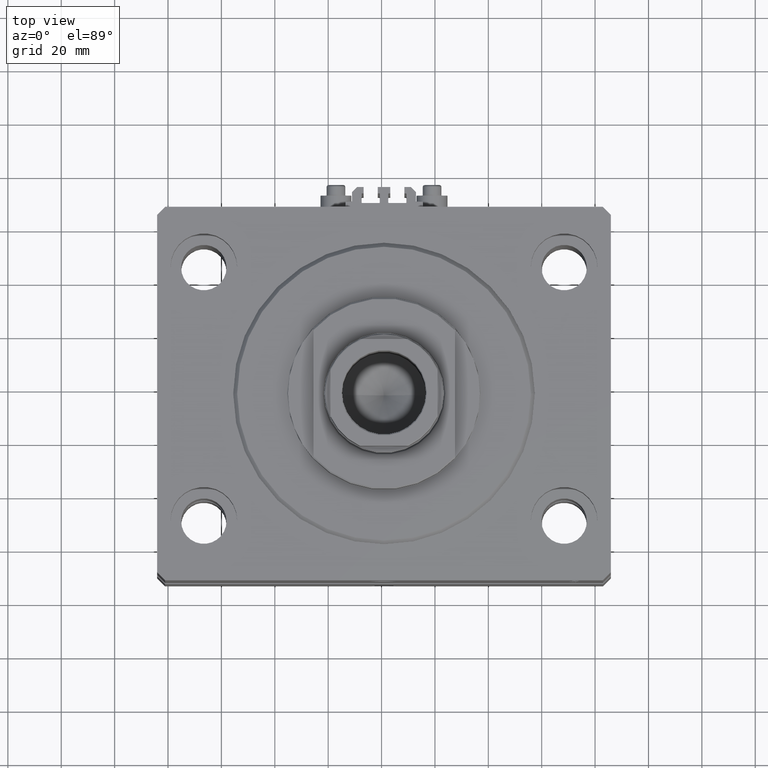
[diagram: clean part render]
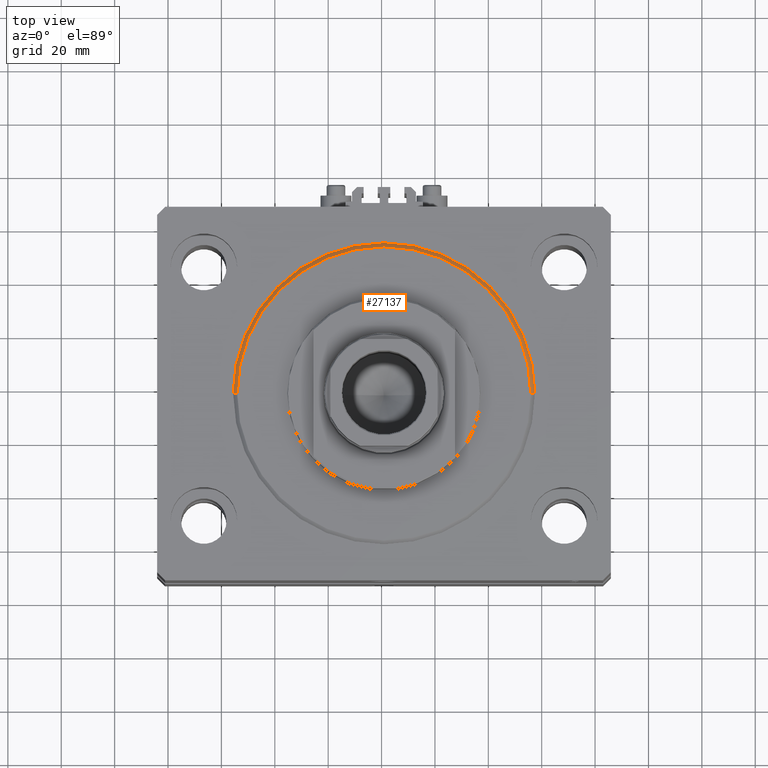
[diagram: same view with one face highlighted and labeled with its STEP entity id]
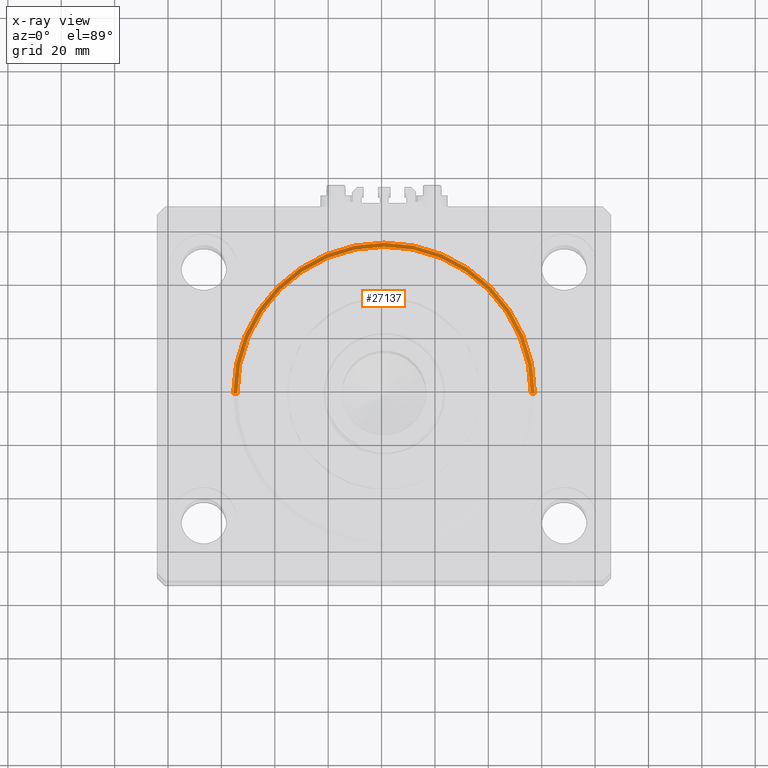
[diagram: x-ray of the same camera — body ghosted, the highlighted face saturated]
A machine part, top view. The second image highlights one B-rep face of the part: STEP entity #27137.
The next image is the same camera in x-ray: the body ghosted, the highlighted face saturated — about 0% of this face is hidden behind the body in this view.
In plain terms, the highlighted conical surface has half-angle 45 deg.
Its self-contained STEP definition (entity closure, byte-faithful):
#521 = VERTEX_POINT ( 'NONE', #42163 ) ;
#978 = DIRECTION ( 'NONE',  ( 1.000000000000000000, 0.000000000000000000, 0.000000000000000000 ) ) ;
#1007 = LINE ( 'NONE', #20058, #36285 ) ;
#1462 = CARTESIAN_POINT ( 'NONE',  ( 0.000000000000000000, 0.000000000000000000, 1.499999999999987566 ) ) ;
#1571 = VERTEX_POINT ( 'NONE', #39433 ) ;
#5839 = ORIENTED_EDGE ( 'NONE', *, *, #16576, .F. ) ;
#5986 = EDGE_LOOP ( 'NONE', ( #37664, #45448, #13624, #5839 ) ) ;
#6374 = DIRECTION ( 'NONE',  ( -0.000000000000000000, -0.000000000000000000, -1.000000000000000000 ) ) ;
#8100 = CIRCLE ( 'NONE', #27079, 56.50000000000000711 ) ;
#8144 = CARTESIAN_POINT ( 'NONE',  ( 0.000000000000000000, 0.000000000000000000, 1.499999999999987566 ) ) ;
#13211 = CARTESIAN_POINT ( 'NONE',  ( 56.50000000000000711, 6.919254415182546126E-15, 1.499999999999987566 ) ) ;
#13624 = ORIENTED_EDGE ( 'NONE', *, *, #39505, .F. ) ;
#15747 = VERTEX_POINT ( 'NONE', #18220 ) ;
#16576 = EDGE_CURVE ( 'NONE', #521, #41690, #1007, .T. ) ;
#18220 = CARTESIAN_POINT ( 'NONE',  ( -55.00000000000002132, 6.827405905246494765E-15, 0.000000000000000000 ) ) ;
#20058 = CARTESIAN_POINT ( 'NONE',  ( 56.50000000000000711, 0.000000000000000000, 1.499999999999987566 ) ) ;
#20506 = CARTESIAN_POINT ( 'NONE',  ( 0.000000000000000000, 0.000000000000000000, 0.000000000000000000 ) ) ;
#20790 = DIRECTION ( 'NONE',  ( 0.7071067811865475727, 0.000000000000000000, 0.7071067811865474617 ) ) ;
#24219 = DIRECTION ( 'NONE',  ( 1.000000000000000000, 0.000000000000000000, 0.000000000000000000 ) ) ;
#26130 = AXIS2_PLACEMENT_3D ( 'NONE', #20506, #6374, #24219 ) ;
#26872 = EDGE_CURVE ( 'NONE', #15747, #1571, #46312, .T. ) ;
#27079 = AXIS2_PLACEMENT_3D ( 'NONE', #8144, #48502, #30193 ) ;
#27137 = ADVANCED_FACE ( 'NONE', ( #35344 ), #47049, .T. ) ;
#30193 = DIRECTION ( 'NONE',  ( 1.000000000000000000, 0.000000000000000000, 0.000000000000000000 ) ) ;
#30991 = CARTESIAN_POINT ( 'NONE',  ( -56.50000000000000711, 6.919254415182544548E-15, 1.499999999999987566 ) ) ;
#34064 = EDGE_CURVE ( 'NONE', #15747, #521, #36347, .T. ) ;
#34384 = DIRECTION ( 'NONE',  ( -0.000000000000000000, -0.000000000000000000, 1.000000000000000000 ) ) ;
#35344 = FACE_OUTER_BOUND ( 'NONE', #5986, .T. ) ;
#36285 = VECTOR ( 'NONE', #20790, 1000.000000000000000 ) ;
#36347 = CIRCLE ( 'NONE', #26130, 55.00000000000002132 ) ;
#37664 = ORIENTED_EDGE ( 'NONE', *, *, #34064, .F. ) ;
#38887 = DIRECTION ( 'NONE',  ( -0.7071067811865475727, 8.659560562354931626E-17, 0.7071067811865474617 ) ) ;
#39433 = CARTESIAN_POINT ( 'NONE',  ( -56.50000000000000711, 0.000000000000000000, 1.499999999999987566 ) ) ;
#39505 = EDGE_CURVE ( 'NONE', #41690, #1571, #8100, .T. ) ;
#40723 = AXIS2_PLACEMENT_3D ( 'NONE', #1462, #34384, #978 ) ;
#41690 = VERTEX_POINT ( 'NONE', #13211 ) ;
#42163 = CARTESIAN_POINT ( 'NONE',  ( 55.00000000000002132, 0.000000000000000000, 0.000000000000000000 ) ) ;
#42278 = VECTOR ( 'NONE', #38887, 1000.000000000000000 ) ;
#45448 = ORIENTED_EDGE ( 'NONE', *, *, #26872, .T. ) ;
#46312 = LINE ( 'NONE', #30991, #42278 ) ;
#47049 = CONICAL_SURFACE ( 'NONE', #40723, 56.50000000000000711, 0.7853981633974482790 ) ;
#48502 = DIRECTION ( 'NONE',  ( -0.000000000000000000, -0.000000000000000000, 1.000000000000000000 ) ) ;